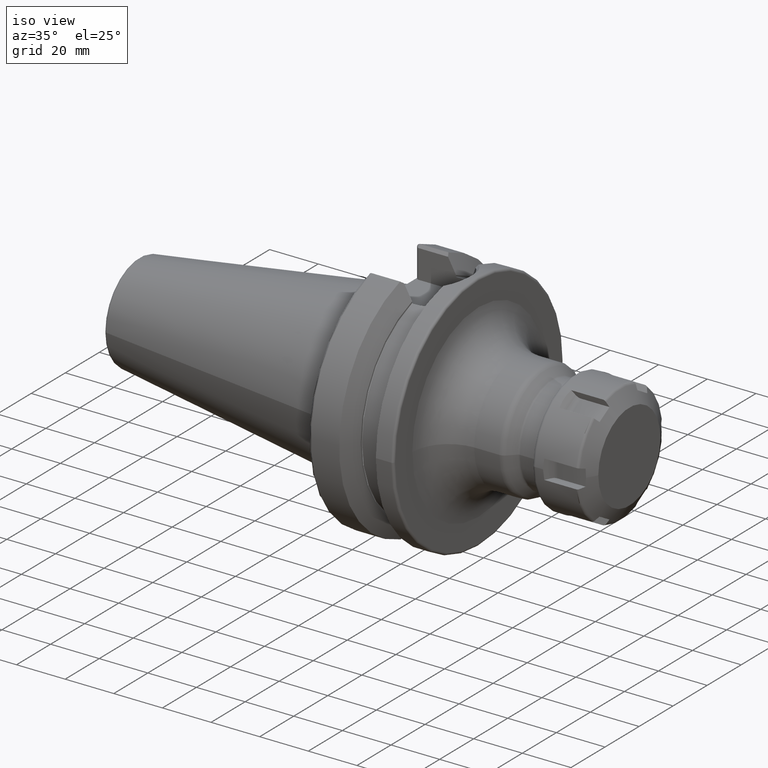
[diagram: clean part render]
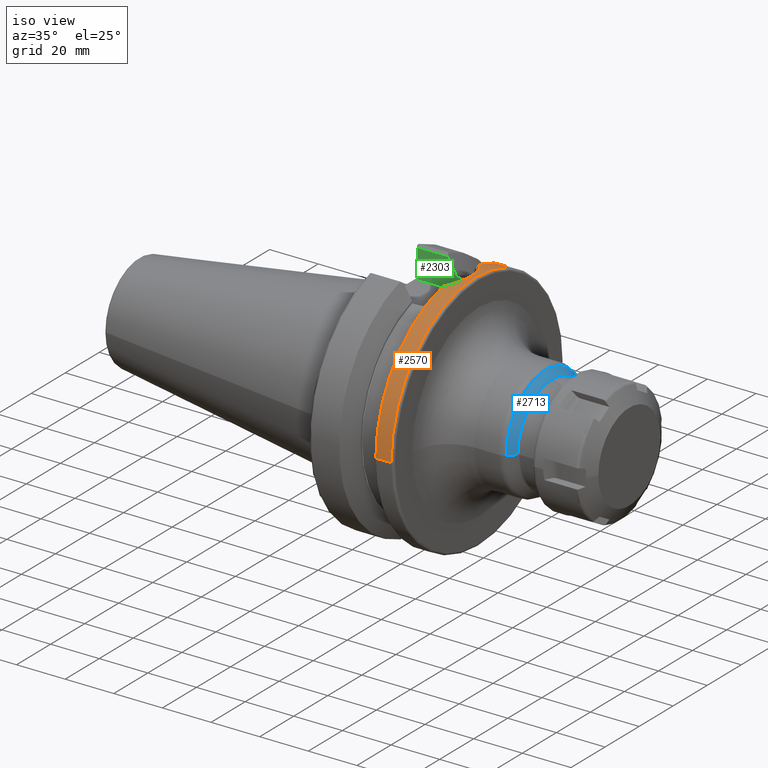
[diagram: same view with three faces highlighted in distinct colors, each labeled with its STEP entity id]
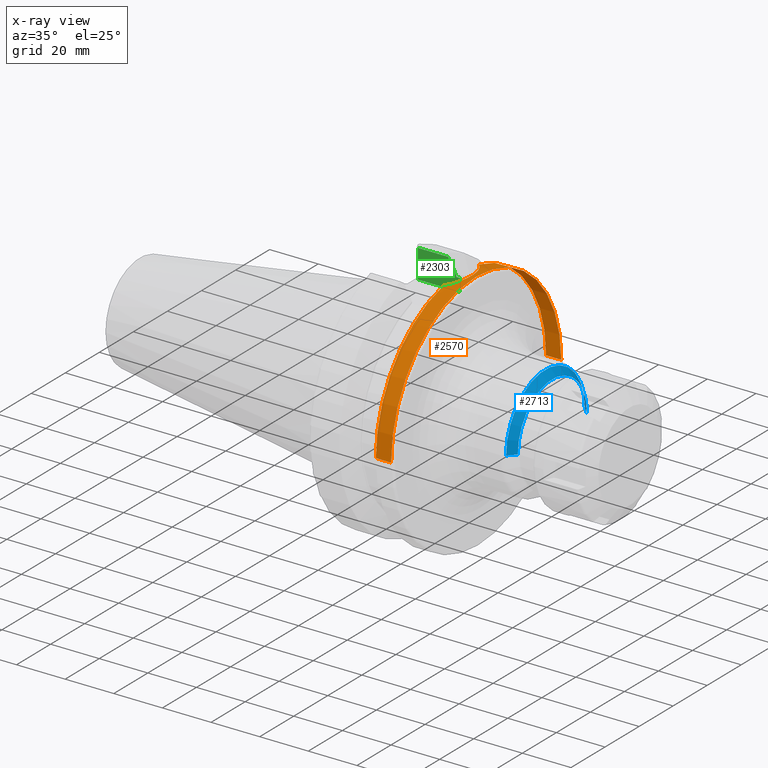
[diagram: x-ray of the same camera — body ghosted, the three highlighted faces saturated]
A machine part, iso view with three faces highlighted in distinct colors.
The next image is the same camera in x-ray (body ghosted, the three faces saturated) — at least one of them is partly hidden behind the body in this view.
Their STEP definitions:

[orange] entity #2570 — the highlighted cylindrical surface (partial cylindrical patch) has radius 49.9875 mm, axis along (1, 0, 0).
#250=DIRECTION('',(-1.E0,0.E0,0.E0));
#251=VECTOR('',#250,6.269331763825E0);
#252=CARTESIAN_POINT('',(3.7E1,-4.99875E1,0.E0));
#253=LINE('',#252,#251);
#259=DIRECTION('',(-1.E0,0.E0,0.E0));
#260=VECTOR('',#259,6.269331763825E0);
#261=CARTESIAN_POINT('',(3.7E1,4.99875E1,0.E0));
#262=LINE('',#261,#260);
#782=CARTESIAN_POINT('',(3.073066823617E1,0.E0,0.E0));
#783=DIRECTION('',(1.E0,0.E0,0.E0));
#784=DIRECTION('',(0.E0,1.E0,0.E0));
#785=AXIS2_PLACEMENT_3D('',#782,#783,#784);
#787=CARTESIAN_POINT('',(3.7E1,0.E0,0.E0));
#788=DIRECTION('',(1.E0,0.E0,0.E0));
#789=DIRECTION('',(0.E0,1.E0,0.E0));
#790=AXIS2_PLACEMENT_3D('',#787,#788,#789);
#792=CARTESIAN_POINT('',(3.073066823617E1,0.E0,0.E0));
#793=DIRECTION('',(1.E0,0.E0,0.E0));
#794=DIRECTION('',(0.E0,-2.094051574285E-1,9.778289625708E-1));
#795=AXIS2_PLACEMENT_3D('',#792,#793,#794);
#797=CARTESIAN_POINT('',(3.073066823617E1,1.046765017837E1,4.887922315251E1));
#798=CARTESIAN_POINT('',(3.093824742254E1,1.027394156657E1,4.892071033431E1));
#799=CARTESIAN_POINT('',(3.161047010606E1,9.607576099682E0,4.905940702404E1));
#800=CARTESIAN_POINT('',(3.263517600486E1,8.361597131920E0,4.929233531601E1));
#801=CARTESIAN_POINT('',(3.366872655698E1,6.670162125591E0,4.955104267859E1));
#802=CARTESIAN_POINT('',(3.445683207094E1,4.858888640768E0,4.976248055972E1));
#803=CARTESIAN_POINT('',(3.498881883781E1,2.963029384908E0,4.991203919913E1));
#804=CARTESIAN_POINT('',(3.525852360168E1,1.017396108424E0,4.998994610559E1));
#805=CARTESIAN_POINT('',(3.526344205362E1,-9.445244441774E-1,4.999137984430E1));
#806=CARTESIAN_POINT('',(3.500362395847E1,-2.891033001447E0,4.991627963537E1));
#807=CARTESIAN_POINT('',(3.448138663547E1,-4.789289725446E0,4.976926316974E1));
#808=CARTESIAN_POINT('',(3.370271475997E1,-6.604336733999E0,4.955990954998E1));
#809=CARTESIAN_POINT('',(3.267803854162E1,-8.300983390707E0,4.930264159969E1));
#810=CARTESIAN_POINT('',(3.164433381328E1,-9.571446946705E0,4.906668367984E1));
#811=CARTESIAN_POINT('',(3.095620205386E1,-1.025716232725E1,4.892430305409E1));
#812=CARTESIAN_POINT('',(3.073066823617E1,-1.046764030696E1,4.887922526651E1));
#1280=CARTESIAN_POINT('',(3.073066823617E1,4.99875E1,0.E0));
#1281=CARTESIAN_POINT('',(3.073066823617E1,1.046765017837E1,4.887922315251E1));
#1282=VERTEX_POINT('',#1280);
#1283=VERTEX_POINT('',#1281);
#1284=CARTESIAN_POINT('',(3.073066823617E1,-4.99875E1,-1.224340637448E-14));
#1286=VERTEX_POINT('',#1284);
#1288=CARTESIAN_POINT('',(3.7E1,4.99875E1,0.E0));
#1289=VERTEX_POINT('',#1288);
#1290=CARTESIAN_POINT('',(3.7E1,-4.99875E1,0.E0));
#1291=VERTEX_POINT('',#1290);
#1292=CARTESIAN_POINT('',(3.073066823617E1,-1.046764030696E1,4.887922526651E1));
#1293=VERTEX_POINT('',#1292);
#2555=CARTESIAN_POINT('',(-1.0879E2,0.E0,0.E0));
#2556=DIRECTION('',(1.E0,0.E0,0.E0));
#2557=DIRECTION('',(0.E0,-1.E0,0.E0));
#2558=AXIS2_PLACEMENT_3D('',#2555,#2556,#2557);
#2559=CYLINDRICAL_SURFACE('',#2558,4.99875E1);
#2560=ORIENTED_EDGE('',*,*,#2457,.F.);
#2561=ORIENTED_EDGE('',*,*,#1827,.F.);
#2563=ORIENTED_EDGE('',*,*,#2562,.T.);
#2564=ORIENTED_EDGE('',*,*,#1823,.T.);
#2565=ORIENTED_EDGE('',*,*,#2470,.F.);
#2567=ORIENTED_EDGE('',*,*,#2566,.F.);
#2568=EDGE_LOOP('',(#2560,#2561,#2563,#2564,#2565,#2567));
#2569=FACE_OUTER_BOUND('',#2568,.F.);
#2570=ADVANCED_FACE('',(#2569),#2559,.T.);
#786=CIRCLE('',#785,4.99875E1);
#791=CIRCLE('',#790,4.99875E1);
#796=CIRCLE('',#795,4.99875E1);
#813=B_SPLINE_CURVE_WITH_KNOTS('',3,(#797,#798,#799,#800,#801,#802,#803,#804,
#805,#806,#807,#808,#809,#810,#811,#812),.UNSPECIFIED.,.F.,.F.,(4,1,1,1,1,1,1,1,
1,1,1,1,1,4),(0.E0,3.613843176766E-2,1.201923969829E-1,2.042463621981E-1,
2.883003274134E-1,3.723542926286E-1,4.564082578438E-1,5.404622230591E-1,
6.245161882743E-1,7.085701534895E-1,7.926241187048E-1,8.766780839200E-1,
9.607320491352E-1,1.E0),.UNSPECIFIED.);
#1823=EDGE_CURVE('',#1291,#1286,#253,.T.);
#1827=EDGE_CURVE('',#1289,#1282,#262,.T.);
#2457=EDGE_CURVE('',#1282,#1283,#786,.T.);
#2470=EDGE_CURVE('',#1293,#1286,#796,.T.);
#2562=EDGE_CURVE('',#1289,#1291,#791,.T.);
#2566=EDGE_CURVE('',#1283,#1293,#813,.T.);

[blue] entity #2713 — the highlighted conical surface has half-angle 45 deg.
#892=CARTESIAN_POINT('',(6.547867965644E1,0.E0,0.E0));
#893=DIRECTION('',(-1.E0,0.E0,0.E0));
#894=DIRECTION('',(0.E0,-1.E0,0.E0));
#895=AXIS2_PLACEMENT_3D('',#892,#893,#894);
#897=CARTESIAN_POINT('',(6.830710678119E1,0.E0,0.E0));
#898=DIRECTION('',(1.E0,0.E0,0.E0));
#899=DIRECTION('',(0.E0,1.E0,0.E0));
#900=AXIS2_PLACEMENT_3D('',#897,#898,#899);
#907=DIRECTION('',(-7.071067811865E-1,-7.071067811865E-1,-2.730771389521E-12));
#908=VECTOR('',#907,3.999999999999E0);
#909=CARTESIAN_POINT('',(6.830710678119E1,-2.029289321881E1,
1.346102932976E-13));
#910=LINE('',#909,#908);
#916=DIRECTION('',(-7.071067811865E-1,7.071067811865E-1,2.729767730407E-12));
#917=VECTOR('',#916,3.999999999999E0);
#918=CARTESIAN_POINT('',(6.830710678119E1,2.029289321881E1,
-1.329486878714E-13));
#919=LINE('',#918,#917);
#1475=CARTESIAN_POINT('',(6.830710678119E1,-2.029289321881E1,0.E0));
#1476=CARTESIAN_POINT('',(6.830710678119E1,2.029289321881E1,0.E0));
#1477=VERTEX_POINT('',#1475);
#1478=VERTEX_POINT('',#1476);
#1483=CARTESIAN_POINT('',(6.547867965644E1,2.312132034356E1,0.E0));
#1484=CARTESIAN_POINT('',(6.547867965644E1,-2.312132034356E1,0.E0));
#1485=VERTEX_POINT('',#1483);
#1486=VERTEX_POINT('',#1484);
#2699=CARTESIAN_POINT('',(6.689289321881E1,0.E0,0.E0));
#2700=DIRECTION('',(-1.E0,0.E0,0.E0));
#2701=DIRECTION('',(0.E0,1.E0,0.E0));
#2702=AXIS2_PLACEMENT_3D('',#2699,#2700,#2701);
#2703=CONICAL_SURFACE('',#2702,2.170710678119E1,4.5E1);
#2704=ORIENTED_EDGE('',*,*,#2693,.T.);
#2706=ORIENTED_EDGE('',*,*,#2705,.F.);
#2708=ORIENTED_EDGE('',*,*,#2707,.T.);
#2710=ORIENTED_EDGE('',*,*,#2709,.T.);
#2711=EDGE_LOOP('',(#2704,#2706,#2708,#2710));
#2712=FACE_OUTER_BOUND('',#2711,.F.);
#2713=ADVANCED_FACE('',(#2712),#2703,.T.);
#896=CIRCLE('',#895,2.312132034356E1);
#901=CIRCLE('',#900,2.029289321881E1);
#2693=EDGE_CURVE('',#1486,#1485,#896,.T.);
#2705=EDGE_CURVE('',#1478,#1485,#919,.T.);
#2707=EDGE_CURVE('',#1478,#1477,#901,.T.);
#2709=EDGE_CURVE('',#1477,#1486,#910,.T.);

[green] entity #2303 — the highlighted planar face has unit normal (0, 1, 0).
#639=DIRECTION('',(0.E0,0.E0,1.E0));
#640=VECTOR('',#639,4.678451531613E-1);
#641=CARTESIAN_POINT('',(1.96625E1,1.29025E1,4.062531376802E1));
#642=LINE('',#641,#640);
#643=CARTESIAN_POINT('',(1.99125E1,1.29025E1,4.036293000700E1));
#644=CARTESIAN_POINT('',(1.988482223968E1,1.29025E1,4.036293000700E1));
#645=CARTESIAN_POINT('',(1.983275140013E1,1.29025E1,4.037231907874E1));
#646=CARTESIAN_POINT('',(1.976358989115E1,1.29025E1,4.040921074747E1));
#647=CARTESIAN_POINT('',(1.970597803203E1,1.29025E1,4.046933362101E1));
#648=CARTESIAN_POINT('',(1.967010312706E1,1.29025E1,4.054571527488E1));
#649=CARTESIAN_POINT('',(1.96625E1,1.29025E1,4.059802443585E1));
#650=CARTESIAN_POINT('',(1.96625E1,1.29025E1,4.062531376802E1));
#652=DIRECTION('',(1.E0,0.E0,0.E0));
#653=VECTOR('',#652,1.435E0);
#654=CARTESIAN_POINT('',(1.99125E1,1.29025E1,4.036293000700E1));
#655=LINE('',#654,#653);
#656=DIRECTION('',(0.E0,0.E0,1.E0));
#657=VECTOR('',#656,5.162930007E0);
#658=CARTESIAN_POINT('',(2.13475E1,1.29025E1,3.52E1));
#659=LINE('',#658,#657);
#660=DIRECTION('',(0.E0,0.E0,1.E0));
#661=VECTOR('',#660,1.177335042340E1);
#662=CARTESIAN_POINT('',(4.E0,1.29025E1,3.52E1));
#663=LINE('',#662,#661);
#664=DIRECTION('',(1.E0,0.E0,0.E0));
#665=VECTOR('',#664,1.240508297825E1);
#666=CARTESIAN_POINT('',(4.E0,1.29025E1,4.697335042340E1));
#667=LINE('',#666,#665);
#668=CARTESIAN_POINT('',(1.96625E1,1.29025E1,4.109315892118E1));
#669=CARTESIAN_POINT('',(1.932181966297E1,1.29025E1,4.171163717070E1));
#670=CARTESIAN_POINT('',(1.862628256782E1,1.29025E1,4.297182203666E1));
#671=CARTESIAN_POINT('',(1.754114212137E1,1.29025E1,4.493063136453E1));
#672=CARTESIAN_POINT('',(1.678855217457E1,1.29025E1,4.628456220339E1));
#673=CARTESIAN_POINT('',(1.640508297825E1,1.29025E1,4.697335042340E1));
#687=DIRECTION('',(-1.E0,0.E0,0.E0));
#688=VECTOR('',#687,1.73475E1);
#689=CARTESIAN_POINT('',(2.13475E1,1.29025E1,3.52E1));
#690=LINE('',#689,#688);
#1236=CARTESIAN_POINT('',(1.96625E1,1.29025E1,4.062531376802E1));
#1238=VERTEX_POINT('',#1236);
#1244=CARTESIAN_POINT('',(1.99125E1,1.29025E1,4.036293000700E1));
#1246=VERTEX_POINT('',#1244);
#1273=CARTESIAN_POINT('',(1.96625E1,1.29025E1,4.109315892118E1));
#1275=VERTEX_POINT('',#1273);
#1363=CARTESIAN_POINT('',(2.13475E1,1.29025E1,3.52E1));
#1365=VERTEX_POINT('',#1363);
#1378=CARTESIAN_POINT('',(2.13475E1,1.29025E1,4.036293000700E1));
#1379=VERTEX_POINT('',#1378);
#1380=VERTEX_POINT('',#673);
#1418=CARTESIAN_POINT('',(4.E0,1.29025E1,3.52E1));
#1419=CARTESIAN_POINT('',(4.E0,1.29025E1,4.697335042340E1));
#1420=VERTEX_POINT('',#1418);
#1421=VERTEX_POINT('',#1419);
#2286=CARTESIAN_POINT('',(2.13475E1,1.29025E1,3.52E1));
#2287=DIRECTION('',(0.E0,1.E0,0.E0));
#2288=DIRECTION('',(-1.E0,0.E0,0.E0));
#2289=AXIS2_PLACEMENT_3D('',#2286,#2287,#2288);
#2290=PLANE('',#2289);
#2291=ORIENTED_EDGE('',*,*,#1728,.F.);
#2292=ORIENTED_EDGE('',*,*,#1882,.F.);
#2293=ORIENTED_EDGE('',*,*,#1914,.T.);
#2294=ORIENTED_EDGE('',*,*,#2031,.F.);
#2296=ORIENTED_EDGE('',*,*,#2295,.T.);
#2298=ORIENTED_EDGE('',*,*,#2297,.T.);
#2299=ORIENTED_EDGE('',*,*,#2279,.T.);
#2300=ORIENTED_EDGE('',*,*,#1760,.F.);
#2301=EDGE_LOOP('',(#2291,#2292,#2293,#2294,#2296,#2298,#2299,#2300));
#2302=FACE_OUTER_BOUND('',#2301,.F.);
#2303=ADVANCED_FACE('',(#2302),#2290,.F.);
#651=B_SPLINE_CURVE_WITH_KNOTS('',3,(#643,#644,#645,#646,#647,#648,#649,#650),
.UNSPECIFIED.,.F.,.F.,(4,1,1,1,1,4),(0.E0,2.E-1,4.E-1,6.E-1,8.E-1,1.E0),
.UNSPECIFIED.);
#674=B_SPLINE_CURVE_WITH_KNOTS('',3,(#668,#669,#670,#671,#672,#673),
.UNSPECIFIED.,.F.,.F.,(4,1,1,4),(0.E0,3.333333333333E-1,6.666666666667E-1,1.E0),
.UNSPECIFIED.);
#1728=EDGE_CURVE('',#1238,#1275,#642,.T.);
#1760=EDGE_CURVE('',#1275,#1380,#674,.T.);
#1882=EDGE_CURVE('',#1246,#1238,#651,.T.);
#1914=EDGE_CURVE('',#1246,#1379,#655,.T.);
#2031=EDGE_CURVE('',#1365,#1379,#659,.T.);
#2279=EDGE_CURVE('',#1421,#1380,#667,.T.);
#2295=EDGE_CURVE('',#1365,#1420,#690,.T.);
#2297=EDGE_CURVE('',#1420,#1421,#663,.T.);